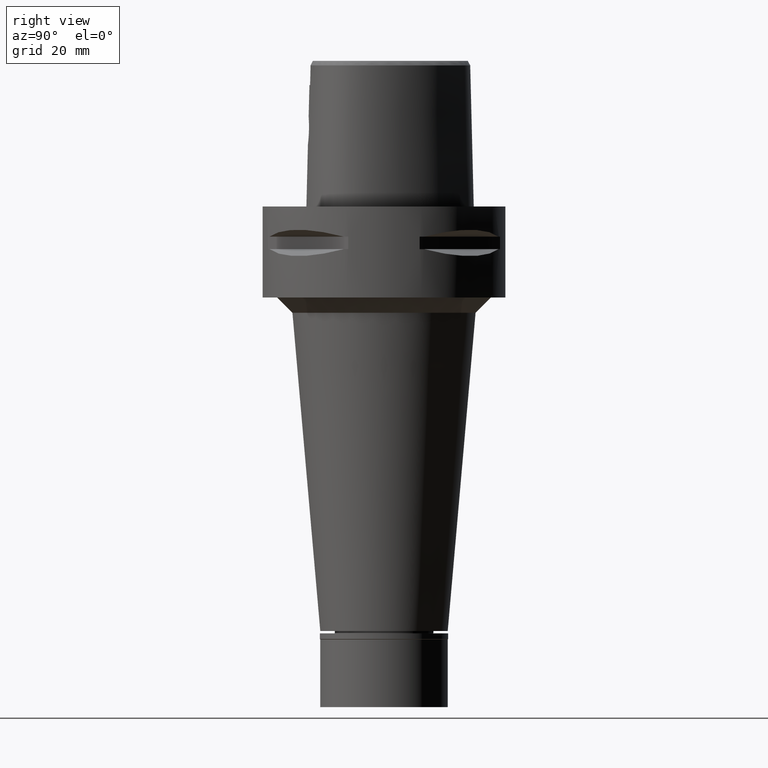
[diagram: clean part render]
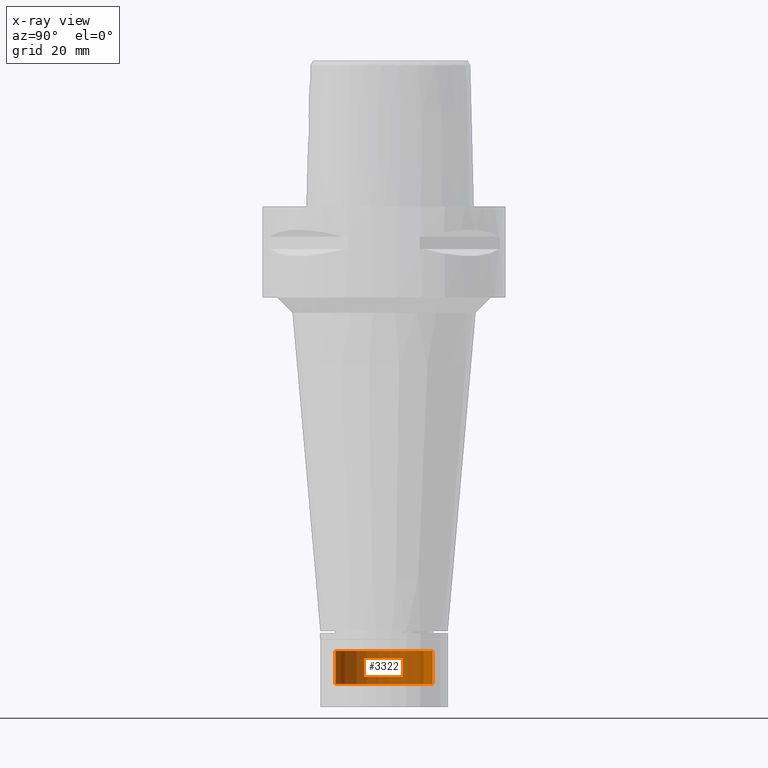
[diagram: x-ray — body ghosted, one internal face saturated and labeled with its STEP entity id]
A machine part, right view, then the same camera in x-ray: the body is ghosted and one INTERNAL B-rep face — a face not visible from any outside direction — is saturated and labeled: STEP entity #3322.
In plain terms, the highlighted cylindrical surface (partial cylindrical patch) has radius 16 mm, axis along (0, 0, -1).
Its self-contained STEP definition (entity closure, byte-faithful):
#17 = EDGE_CURVE ( 'NONE', #4943, #4334, #4552, .T. ) ;
#105 = EDGE_CURVE ( 'NONE', #2578, #4334, #2741, .T. ) ;
#202 = CARTESIAN_POINT ( 'NONE',  ( 0.0000000000000000000, 1.321087734579999834E-14, -157.5000000000000000 ) ) ;
#334 = VECTOR ( 'NONE', #992, 1000.000000000000000 ) ;
#804 = ORIENTED_EDGE ( 'NONE', *, *, #105, .F. ) ;
#847 = AXIS2_PLACEMENT_3D ( 'NONE', #202, #1398, #1823 ) ;
#859 = AXIS2_PLACEMENT_3D ( 'NONE', #3449, #1904, #4271 ) ;
#899 = EDGE_LOOP ( 'NONE', ( #1757, #804, #3437, #4254 ) ) ;
#900 = CYLINDRICAL_SURFACE ( 'NONE', #3990, 16.00000000000000000 ) ;
#992 = DIRECTION ( 'NONE',  ( 0.0000000000000000000, 0.0000000000000000000, -1.000000000000000000 ) ) ;
#1088 = CARTESIAN_POINT ( 'NONE',  ( 0.0000000000000000000, 16.00000000000000000, -157.5000000000000000 ) ) ;
#1128 = DIRECTION ( 'NONE',  ( 0.0000000000000000000, 0.0000000000000000000, -1.000000000000000000 ) ) ;
#1180 = CARTESIAN_POINT ( 'NONE',  ( 0.0000000000000000000, 16.00000000000000000, -146.5000000000000000 ) ) ;
#1398 = DIRECTION ( 'NONE',  ( 0.0000000000000000000, 0.0000000000000000000, 1.000000000000000000 ) ) ;
#1657 = EDGE_CURVE ( 'NONE', #2578, #4258, #2549, .T. ) ;
#1757 = ORIENTED_EDGE ( 'NONE', *, *, #17, .T. ) ;
#1823 = DIRECTION ( 'NONE',  ( 0.0000000000000000000, 1.000000000000000000, 0.0000000000000000000 ) ) ;
#1904 = DIRECTION ( 'NONE',  ( 0.0000000000000000000, 0.0000000000000000000, -1.000000000000000000 ) ) ;
#1944 = CARTESIAN_POINT ( 'NONE',  ( 0.0000000000000000000, -16.00000000000000000, -157.5000000000000000 ) ) ;
#2097 = DIRECTION ( 'NONE',  ( 0.0000000000000000000, 0.0000000000000000000, -1.000000000000000000 ) ) ;
#2176 = FACE_OUTER_BOUND ( 'NONE', #899, .T. ) ;
#2202 = DIRECTION ( 'NONE',  ( 0.0000000000000000000, -1.000000000000000000, 0.0000000000000000000 ) ) ;
#2549 = CIRCLE ( 'NONE', #859, 16.00000000000000000 ) ;
#2569 = CARTESIAN_POINT ( 'NONE',  ( 0.0000000000000000000, 1.321087734579999834E-14, 7.875000000000000000 ) ) ;
#2578 = VERTEX_POINT ( 'NONE', #4926 ) ;
#2741 = LINE ( 'NONE', #5125, #334 ) ;
#3211 = CARTESIAN_POINT ( 'NONE',  ( 0.0000000000000000000, 16.00000000000000000, -146.5000000000000000 ) ) ;
#3322 = ADVANCED_FACE ( 'NONE', ( #2176 ), #900, .T. ) ;
#3437 = ORIENTED_EDGE ( 'NONE', *, *, #1657, .T. ) ;
#3449 = CARTESIAN_POINT ( 'NONE',  ( 0.0000000000000000000, 1.321087734579999834E-14, -146.5000000000000000 ) ) ;
#3520 = LINE ( 'NONE', #3211, #4743 ) ;
#3990 = AXIS2_PLACEMENT_3D ( 'NONE', #2569, #2097, #2202 ) ;
#4254 = ORIENTED_EDGE ( 'NONE', *, *, #4308, .T. ) ;
#4258 = VERTEX_POINT ( 'NONE', #1180 ) ;
#4271 = DIRECTION ( 'NONE',  ( 0.0000000000000000000, -1.000000000000000000, 0.0000000000000000000 ) ) ;
#4308 = EDGE_CURVE ( 'NONE', #4258, #4943, #3520, .T. ) ;
#4334 = VERTEX_POINT ( 'NONE', #1944 ) ;
#4552 = CIRCLE ( 'NONE', #847, 16.00000000000000000 ) ;
#4743 = VECTOR ( 'NONE', #1128, 1000.000000000000000 ) ;
#4926 = CARTESIAN_POINT ( 'NONE',  ( 0.0000000000000000000, -16.00000000000000000, -146.5000000000000000 ) ) ;
#4943 = VERTEX_POINT ( 'NONE', #1088 ) ;
#5125 = CARTESIAN_POINT ( 'NONE',  ( 0.0000000000000000000, -16.00000000000000000, -146.5000000000000000 ) ) ;